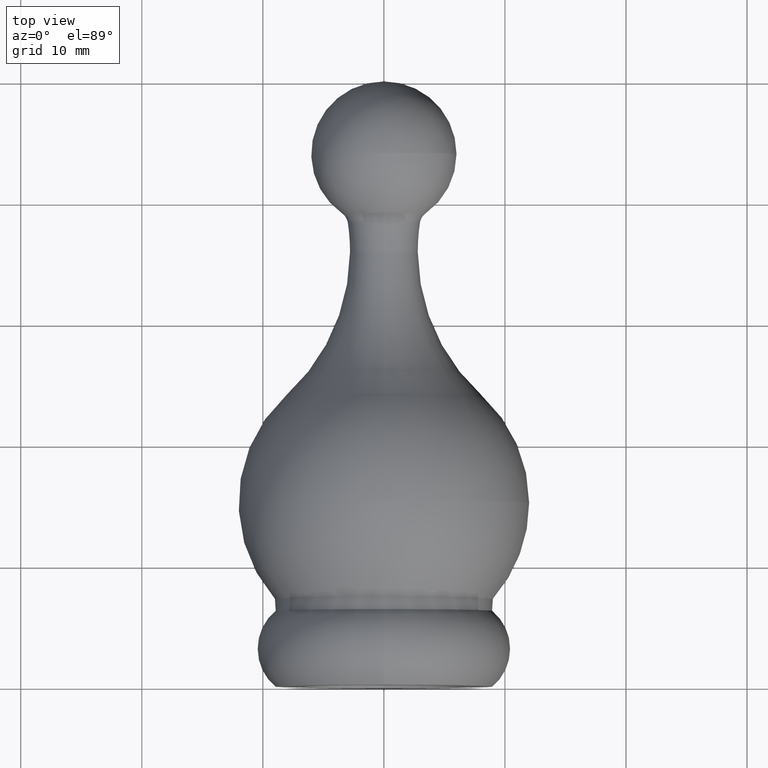
[diagram: clean part render]
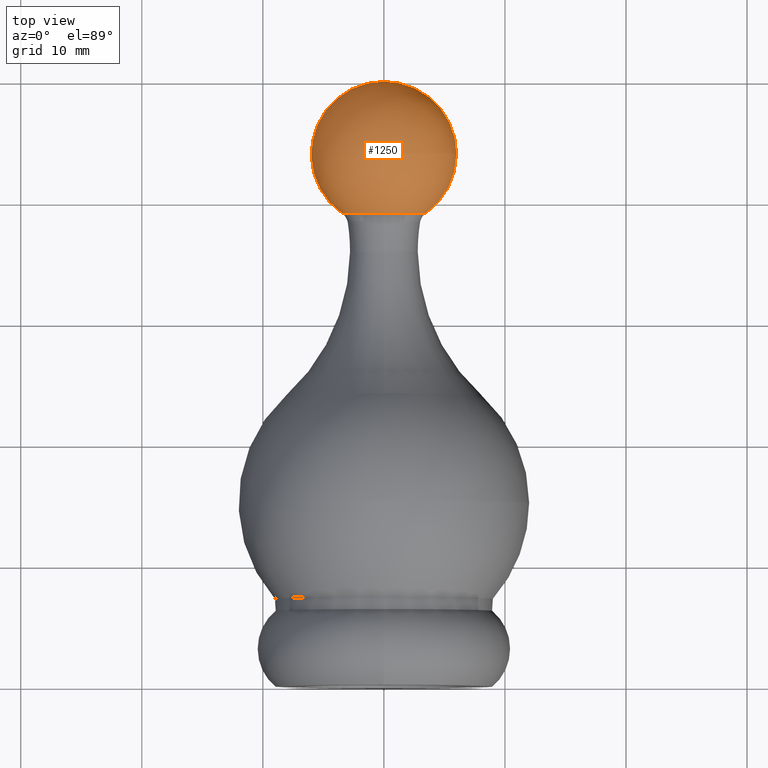
[diagram: same view with one face highlighted and labeled with its STEP entity id]
A machine part, top view. The second image highlights one B-rep face of the part: STEP entity #1250.
In plain terms, the highlighted spherical surface has radius 6 mm.
Its self-contained STEP definition (entity closure, byte-faithful):
#104 = CARTESIAN_POINT ( 'NONE',  ( -3.428571428571427049, 39.07608916011026423, 4.198789025648066308E-16 ) ) ;
#190 = AXIS2_PLACEMENT_3D ( 'NONE', #7411, #6553, #7473 ) ;
#437 = AXIS2_PLACEMENT_3D ( 'NONE', #3097, #4824, #4733 ) ;
#452 = CIRCLE ( 'NONE', #1951, 3.428571428571426605 ) ;
#484 = DIRECTION ( 'NONE',  ( 0.000000000000000000, 0.000000000000000000, -1.000000000000000000 ) ) ;
#683 = EDGE_LOOP ( 'NONE', ( #6375, #11296, #3246, #10107 ) ) ;
#737 = CARTESIAN_POINT ( 'NONE',  ( 4.198789025648064335E-16, 39.07608916011026423, 3.428571428571425717 ) ) ;
#1161 = CARTESIAN_POINT ( 'NONE',  ( 0.000000000000000000, 39.07608916011026423, 0.000000000000000000 ) ) ;
#1250 = ADVANCED_FACE ( 'NONE', ( #5413 ), #9792, .T. ) ;
#1331 = VERTEX_POINT ( 'NONE', #6023 ) ;
#1951 = AXIS2_PLACEMENT_3D ( 'NONE', #1161, #10051, #484 ) ;
#2541 = CARTESIAN_POINT ( 'NONE',  ( 0.000000000000000000, 39.07608916011026423, 0.000000000000000000 ) ) ;
#2925 = AXIS2_PLACEMENT_3D ( 'NONE', #8712, #11137, #5209 ) ;
#3097 = CARTESIAN_POINT ( 'NONE',  ( 0.000000000000000000, 44.00000000000000711, 0.000000000000000000 ) ) ;
#3246 = ORIENTED_EDGE ( 'NONE', *, *, #3335, .F. ) ;
#3335 = EDGE_CURVE ( 'NONE', #5312, #5546, #452, .T. ) ;
#3338 = EDGE_CURVE ( 'NONE', #1331, #5546, #5086, .T. ) ;
#3456 = DIRECTION ( 'NONE',  ( -0.000000000000000000, -1.000000000000000000, -0.000000000000000000 ) ) ;
#3530 = VERTEX_POINT ( 'NONE', #11106 ) ;
#3612 = EDGE_CURVE ( 'NONE', #1331, #3530, #3995, .T. ) ;
#3995 = CIRCLE ( 'NONE', #2925, 5.999999999999998224 ) ;
#4232 = DIRECTION ( 'NONE',  ( 0.000000000000000000, 0.000000000000000000, -1.000000000000000000 ) ) ;
#4733 = DIRECTION ( 'NONE',  ( 1.000000000000000000, 0.000000000000000000, 0.000000000000000000 ) ) ;
#4824 = DIRECTION ( 'NONE',  ( 0.000000000000000000, 0.000000000000000000, 1.000000000000000000 ) ) ;
#5086 = CIRCLE ( 'NONE', #190, 5.999999999999998224 ) ;
#5209 = DIRECTION ( 'NONE',  ( -1.000000000000000000, 0.000000000000000000, 0.000000000000000000 ) ) ;
#5312 = VERTEX_POINT ( 'NONE', #737 ) ;
#5413 = FACE_OUTER_BOUND ( 'NONE', #683, .T. ) ;
#5546 = VERTEX_POINT ( 'NONE', #104 ) ;
#6023 = CARTESIAN_POINT ( 'NONE',  ( 3.673940397442058882E-16, 50.00000000000000000, 0.000000000000000000 ) ) ;
#6096 = EDGE_CURVE ( 'NONE', #3530, #5312, #9969, .T. ) ;
#6375 = ORIENTED_EDGE ( 'NONE', *, *, #3612, .F. ) ;
#6553 = DIRECTION ( 'NONE',  ( 1.224646799147353207E-16, -0.000000000000000000, 1.000000000000000000 ) ) ;
#7411 = CARTESIAN_POINT ( 'NONE',  ( 0.000000000000000000, 44.00000000000000711, 0.000000000000000000 ) ) ;
#7473 = DIRECTION ( 'NONE',  ( 1.000000000000000000, 0.000000000000000000, -1.224646799147353207E-16 ) ) ;
#8712 = CARTESIAN_POINT ( 'NONE',  ( 0.000000000000000000, 44.00000000000000711, 0.000000000000000000 ) ) ;
#9045 = AXIS2_PLACEMENT_3D ( 'NONE', #2541, #3456, #4232 ) ;
#9792 = SPHERICAL_SURFACE ( 'NONE', #437, 5.999999999999998224 ) ;
#9969 = CIRCLE ( 'NONE', #9045, 3.428571428571426605 ) ;
#10051 = DIRECTION ( 'NONE',  ( -0.000000000000000000, -1.000000000000000000, -0.000000000000000000 ) ) ;
#10107 = ORIENTED_EDGE ( 'NONE', *, *, #6096, .F. ) ;
#11106 = CARTESIAN_POINT ( 'NONE',  ( 3.428571428571427049, 39.07608916011026423, 0.000000000000000000 ) ) ;
#11137 = DIRECTION ( 'NONE',  ( 0.000000000000000000, 0.000000000000000000, -1.000000000000000000 ) ) ;
#11296 = ORIENTED_EDGE ( 'NONE', *, *, #3338, .T. ) ;